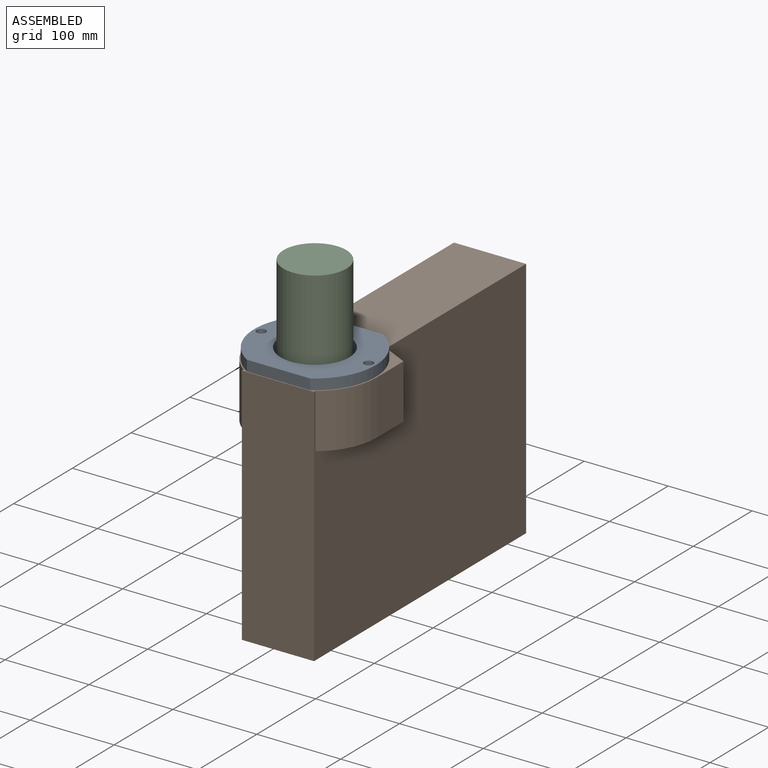
[diagram: assembled view]
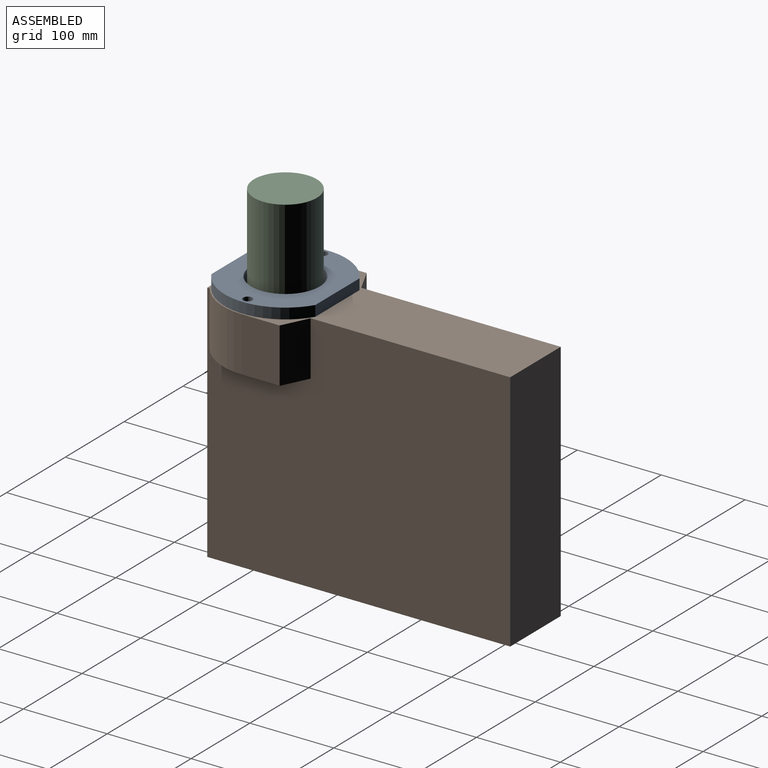
[diagram: assembled view, second angle]
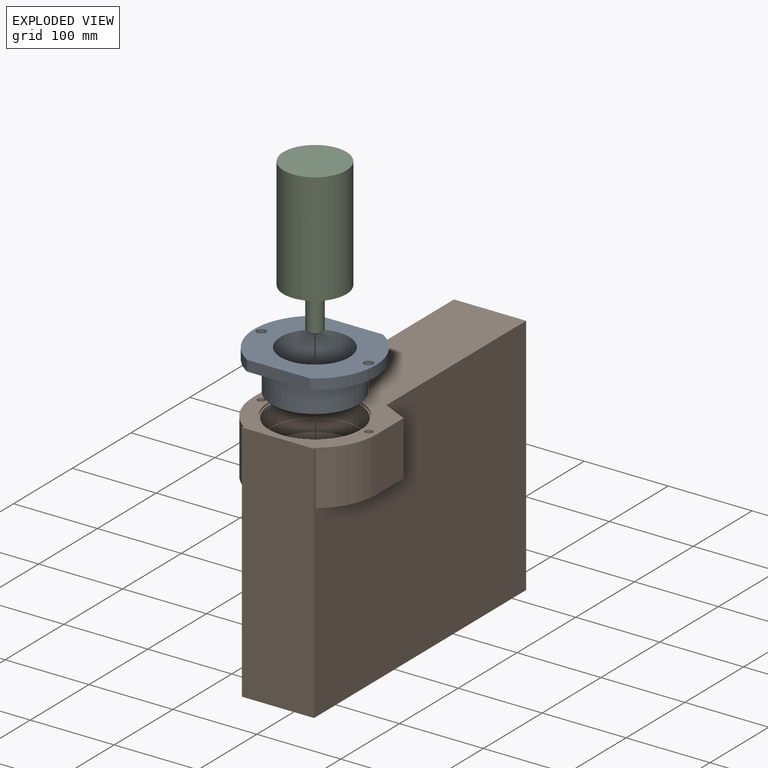
[diagram: exploded view]
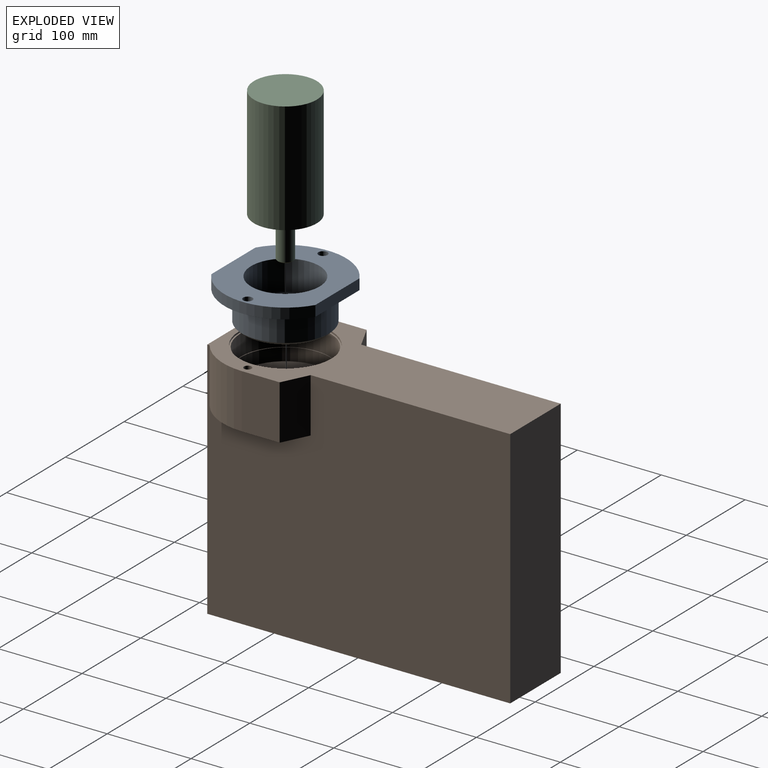
[diagram: exploded view, second angle]
ASSEMBLY  parts=3 mates=6
PART A: 31 faces, bbox 145x124x50.7 mm
  f0: plane 145x124mm, normal (0,0,1), area 9973.4mm2, adj f1,f2,f4,f11,f12,f27,f28
  f1: cylinder r=72.5mm len=124mm, axis (0,0,1), area 1889.2mm2, adj f0,f3,f27,f28
  f2: cylinder r=72.5mm len=124mm, axis (0,0,1), area 1889.2mm2, adj f0,f3,f27,f28
  f3: plane 145x124mm, normal (0,0,-1), area 5751.1mm2, adj f1,f2,f11,f12,f26,f27,f28
  f4: cylinder r=41mm len=82mm, axis (0,0,1), area 9196.7mm2, adj f0,f30
  f5: cylinder r=52mm len=104mm, axis (0,0,1), area 10455.2mm2, adj f25,f26
  f6: plane 98x98mm, normal (0,0,-1), area 6765.2mm2, adj f7,f15,f18,f21,f24,f25
  f7: cylinder r=11mm len=22mm, axis (0,0,1), area 483.8mm2, adj f6,f8
  f8: plane 50x50mm, normal (0,0,1), area 1583.4mm2, adj f7,f9
  f9: cylinder r=25mm len=50mm, axis (0,0,1), area 534.1mm2, adj f8,f29
  f10: plane 76x76mm, normal (0,0,1), area 2176.7mm2, adj f13,f16,f19,f22,f29,f30
  f11: cylinder r=5.5mm len=12.7mm, axis (0,0,1), area 438.9mm2, adj f0,f3
  f12: cylinder r=5.5mm len=12.7mm, axis (0,0,1), area 438.9mm2, adj f0,f3
  f13: cylinder r=3.3mm len=6.6mm, axis (0,0,-1), area 124.4mm2, adj f10,f14
  f14: plane 11.25x11.25mm, normal (0,0,-1), area 65.2mm2, adj f13,f15
  f15: cylinder r=5.62mm len=11.25mm, axis (0,0,-1), area 212.1mm2, adj f6,f14
  f16: cylinder r=3.3mm len=6.6mm, axis (0,0,-1), area 124.4mm2, adj f10,f17
  f17: plane 11.25x11.25mm, normal (0,0,-1), area 65.2mm2, adj f16,f18
  f18: cylinder r=5.62mm len=11.25mm, axis (0,0,-1), area 212.1mm2, adj f6,f17
  f19: cylinder r=3.3mm len=6.6mm, axis (0,0,-1), area 124.4mm2, adj f10,f20
  f20: plane 11.25x11.25mm, normal (0,0,-1), area 65.2mm2, adj f19,f21
  f21: cylinder r=5.62mm len=11.25mm, axis (0,0,-1), area 212.1mm2, adj f6,f20
  f22: cylinder r=3.3mm len=6.6mm, axis (0,0,-1), area 124.4mm2, adj f10,f23
  f23: plane 11.25x11.25mm, normal (0,0,-1), area 65.2mm2, adj f22,f24
  f24: cylinder r=5.62mm len=11.25mm, axis (0,0,-1), area 212.1mm2, adj f6,f23
  f25: cone r=52mm half-angle=45deg, axis (0,0,1), area 1346.2mm2, adj f5,f6
  f26: cone r=55mm half-angle=45deg, axis (0,0,1), area 1426.2mm2, adj f3,f5
  f27: plane 75.16x12.7mm, normal (0,-1,0), area 954.5mm2, adj f0,f1,f2,f3
  f28: plane 75.16x12.7mm, normal (0,1,0), area 954.5mm2, adj f0,f1,f2,f3
  f29: cone r=25mm half-angle=45deg, axis (0,0,1), area 366.8mm2, adj f9,f10
  f30: torus R=38mm, axis (0,0,-1), area 1181.7mm2, adj f4,f10
PART B: 31 faces, bbox 148x290x361 mm
  f0: plane 105x105mm, normal (0,-1,0), area 7524.9mm2, adj f19,f26
  f1: plane 361x290mm, normal (1,0,0), area 96860.8mm2, adj f2,f4,f5,f6,f11,f13,f14
  f2: plane 290x86mm, normal (0,0,1), area 24940mm2, adj f1,f3,f5,f6
  f3: plane 361x290mm, normal (-1,0,0), area 96860.8mm2, adj f2,f4,f5,f6,f8,f9,f10
  f4: plane 290x86mm, normal (0,0,-1), area 24940mm2, adj f1,f3,f5,f6
  f5: plane 361x148mm, normal (0,-1,0), area 27268.1mm2, adj f1,f2,f3,f4,f7,f9,f10,f11
  f6: plane 361x86mm, normal (0,1,0), area 31046mm2, adj f1,f2,f3,f4
  f7: plane 65x45mm, normal (-1,0,0), area 2925mm2, adj f5,f8,f9,f10
  f8: plane 120.45x31mm, normal (0,1,0), area 2939.3mm2, adj f3,f7,f9,f10
  f9: plane 65x31mm, normal (-0.44,0,0.9), area 2244.9mm2, adj f3,f5,f7,f8
  f10: cylinder r=74mm len=65mm, axis (0,-1,0), area 4573.1mm2, adj f3,f5,f7,f8
  f11: cylinder r=74mm len=65mm, axis (0,-1,0), area 4573.1mm2, adj f1,f5,f12,f14
  f12: plane 65x45mm, normal (1,0,0), area 2925mm2, adj f5,f11,f13,f14
  f13: plane 65x31mm, normal (0.44,0,0.9), area 2244.9mm2, adj f1,f5,f12,f14
  f14: plane 120.45x31mm, normal (0,1,0), area 2939.3mm2, adj f1,f11,f12,f13
  f15: cylinder r=55.07mm len=110.15mm, axis (0,-1,0), area 692.1mm2, adj f5,f16
  f16: plane 110.15x110.15mm, normal (0,-1,0), area 537.2mm2, adj f15,f17
  f17: cylinder r=53.5mm len=107mm, axis (0,-1,0), area 8403.8mm2, adj f16,f18
  f18: plane 107x107mm, normal (0,-1,0), area 333mm2, adj f17,f19
  f19: cylinder r=52.5mm len=105mm, axis (0,-1,0), area 4948mm2, adj f0,f18
  f20: plane 34x34mm, normal (0,-1,0), area 605.2mm2, adj f22,f23,f24,f25,f26
  f21: plane 21.88x19.04mm, normal (0,-1,0), area 302.7mm2, adj f22,f23,f24,f25
  f22: plane 67x3.33mm, normal (1,0,0), area 222.8mm2, adj f20,f21,f23,f25
  f23: cylinder r=9.52mm len=67mm, axis (0,-1,0), area 3598.7mm2, adj f20,f21,f22,f24
  f24: plane 67x3.33mm, normal (-1,0,0), area 222.8mm2, adj f20,f21,f23,f25
  f25: plane 67x6mm, normal (0,0,-1), area 402mm2, adj f20,f21,f22,f24
  f26: cone r=17mm half-angle=45deg, axis (0,1,0), area 319.9mm2, adj f0,f20
  f27: cone r=0mm half-angle=59deg, axis (0,-1,0), area 74.2mm2, adj f28
  f28: cylinder r=4.5mm len=27mm, axis (0,-1,0), area 763.4mm2, adj f5,f27
  f29: cone r=0mm half-angle=59deg, axis (0,-1,0), area 74.2mm2, adj f30
  f30: cylinder r=4.5mm len=27mm, axis (0,-1,0), area 763.4mm2, adj f5,f29
PART C: 20 faces, bbox 75x75x182.2 mm
  f0: plane 17x17mm, normal (0,0,1), area 227mm2, adj f19
  f1: cylinder r=9.5mm len=39mm, axis (0,0,-1), area 2327.9mm2, adj f2,f19
  f2: plane 19x19mm, normal (0,0,-1), area 56.5mm2, adj f1,f3
  f3: cylinder r=8.5mm len=17mm, axis (0,0,-1), area 80.1mm2, adj f2,f4
  f4: plane 19x19mm, normal (0,0,1), area 56.5mm2, adj f3,f5
  f5: cylinder r=9.5mm len=19mm, axis (0,0,-1), area 149.2mm2, adj f4,f6
  f6: plane 50x50mm, normal (0,0,1), area 1680mm2, adj f5,f7
  f7: cylinder r=25mm len=50mm, axis (0,0,-1), area 785.4mm2, adj f6,f8
  f8: plane 75x75mm, normal (0,0,1), area 2375.8mm2, adj f7,f9,f12,f14,f16,f18
  f9: cylinder r=37.5mm len=133.2mm, axis (0,0,-1), area 31384.5mm2, adj f8,f10
  f10: plane 75x75mm, normal (0,0,-1), area 4417.9mm2, adj f9
  f11: cone r=0mm half-angle=59deg, axis (0,0,1), area 22.9mm2, adj f12
  f12: cylinder r=2.5mm len=19mm, axis (0,0,1), area 298.5mm2, adj f8,f11
  f13: cone r=0mm half-angle=59deg, axis (0,0,1), area 22.9mm2, adj f14
  f14: cylinder r=2.5mm len=19mm, axis (0,0,1), area 298.5mm2, adj f8,f13
  f15: cone r=0mm half-angle=59deg, axis (0,0,1), area 22.9mm2, adj f16
  f16: cylinder r=2.5mm len=19mm, axis (0,0,1), area 298.5mm2, adj f8,f15
  f17: cone r=0mm half-angle=59deg, axis (0,0,1), area 22.9mm2, adj f18
  f18: cylinder r=2.5mm len=19mm, axis (0,0,1), area 298.5mm2, adj f8,f17
  f19: cone r=9.5mm half-angle=45deg, axis (0,0,-1), area 80mm2, adj f0,f1
PLACE A t=(-1.58,1.23,-3.47)mm fixed
PLACE B rot(axis=(-1,0,0),90deg) t=(-1.58,118.73,-274.14)mm
PLACE C rot(axis=(0,1,0),180deg) t=(-1.58,1.23,-10.14)mm
MATE planar C.f1 <-> A.f1  axis (0,0,-1) through (-1.58,1.23,-10.14)mm
MATE planar B.f5 <-> A.f1  axis (0,0,1) through (-1.58,135.93,15.86)mm
MATE cylindrical C.f17 <-> A.f13  axis (0,0,-1) through (-1.58,-31.27,-0.64)mm
MATE cylindrical C.f1 <-> A.f1  axis (0,0,1) through (-1.58,1.23,-12.64)mm
MATE cylindrical B.f23 <-> C.f1  axis (0,0,1) through (-1.58,1.23,-57.64)mm
MATE cylindrical B.f29 <-> A.f12  axis (0,0,1) through (62.42,1.23,2.36)mm
